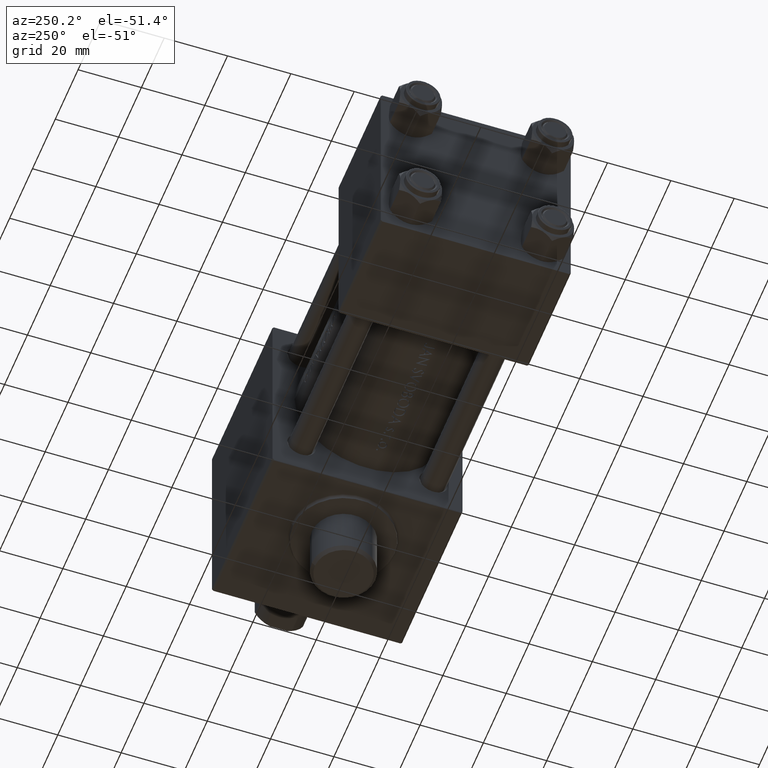
[diagram: clean part render]
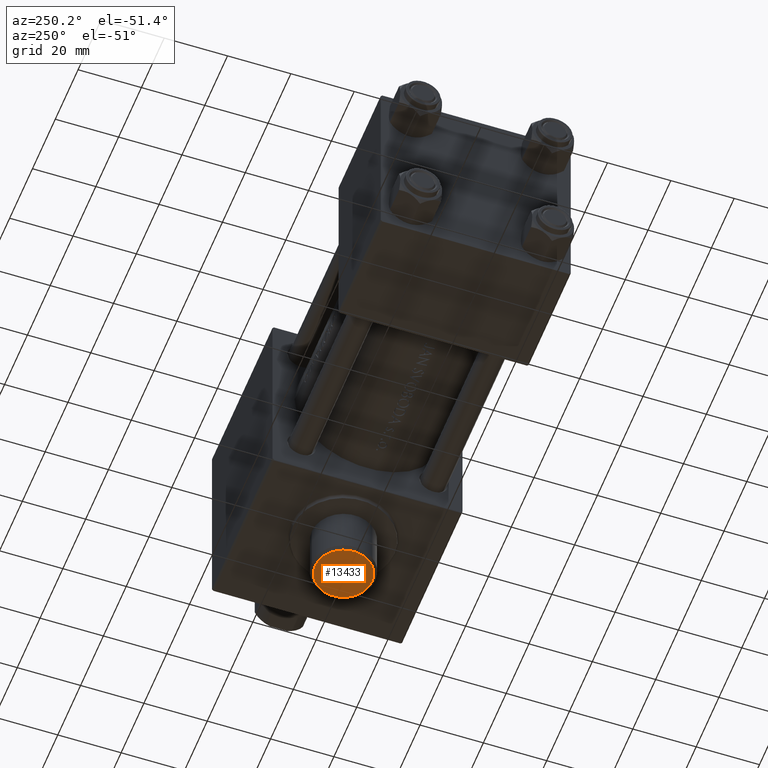
[diagram: same view with one face highlighted and labeled with its STEP entity id]
A machine part, auxiliary view. The second image highlights one B-rep face of the part: STEP entity #13433.
In plain terms, the highlighted planar face has unit normal (0, -0, -1).
Its self-contained STEP definition (entity closure, byte-faithful):
#615 = CARTESIAN_POINT ( 'NONE',  ( 115.9999999999999858, 48.50000000000000711, -1.474514954580286425E-15 ) ) ;
#735 = CARTESIAN_POINT ( 'NONE',  ( 115.9999999999999858, 48.50000000000000711, 8.999999999999962697 ) ) ;
#3601 = EDGE_CURVE ( 'NONE', #26709, #23378, #30122, .T. ) ;
#3891 = PLANE ( 'NONE',  #6355 ) ;
#6355 = AXIS2_PLACEMENT_3D ( 'NONE', #615, #28954, #11155 ) ;
#7403 = DIRECTION ( 'NONE',  ( 0.000000000000000000, 1.000000000000000000, -8.673617379884036705E-17 ) ) ;
#10817 = DIRECTION ( 'NONE',  ( 0.000000000000000000, 0.000000000000000000, 1.000000000000000000 ) ) ;
#11155 = DIRECTION ( 'NONE',  ( 0.000000000000000000, -8.673617379884036705E-17, -1.000000000000000000 ) ) ;
#13338 = ORIENTED_EDGE ( 'NONE', *, *, #3601, .T. ) ;
#13433 = ADVANCED_FACE ( 'NONE', ( #25201 ), #3891, .T. ) ;
#16361 = CIRCLE ( 'NONE', #41080, 8.999999999999964473 ) ;
#20153 = ORIENTED_EDGE ( 'NONE', *, *, #33234, .T. ) ;
#23378 = VERTEX_POINT ( 'NONE', #44512 ) ;
#24961 = DIRECTION ( 'NONE',  ( 0.000000000000000000, 0.000000000000000000, 1.000000000000000000 ) ) ;
#25201 = FACE_OUTER_BOUND ( 'NONE', #32536, .T. ) ;
#26430 = AXIS2_PLACEMENT_3D ( 'NONE', #28620, #42919, #10817 ) ;
#26709 = VERTEX_POINT ( 'NONE', #735 ) ;
#28620 = CARTESIAN_POINT ( 'NONE',  ( 115.9999999999999858, 48.50000000000000711, -1.474514954580286425E-15 ) ) ;
#28954 = DIRECTION ( 'NONE',  ( 0.000000000000000000, 1.000000000000000000, -8.673617379884036705E-17 ) ) ;
#30122 = CIRCLE ( 'NONE', #26430, 8.999999999999964473 ) ;
#32536 = EDGE_LOOP ( 'NONE', ( #20153, #13338 ) ) ;
#33234 = EDGE_CURVE ( 'NONE', #23378, #26709, #16361, .T. ) ;
#39495 = CARTESIAN_POINT ( 'NONE',  ( 115.9999999999999858, 48.50000000000000711, -1.474514954580286425E-15 ) ) ;
#41080 = AXIS2_PLACEMENT_3D ( 'NONE', #39495, #7403, #24961 ) ;
#42919 = DIRECTION ( 'NONE',  ( 0.000000000000000000, 1.000000000000000000, -8.673617379884036705E-17 ) ) ;
#44512 = CARTESIAN_POINT ( 'NONE',  ( 115.9999999999999858, 48.50000000000000711, -8.999999999999966249 ) ) ;